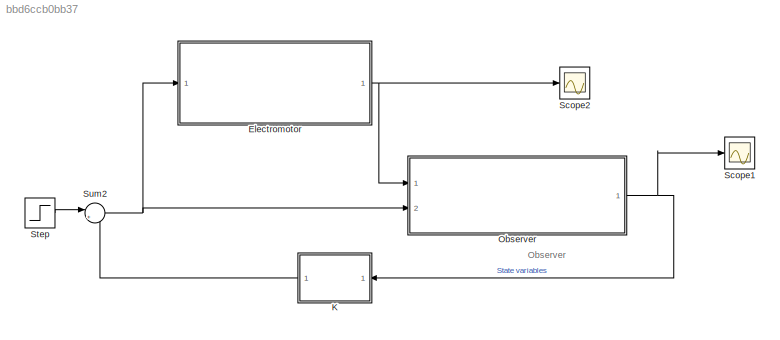
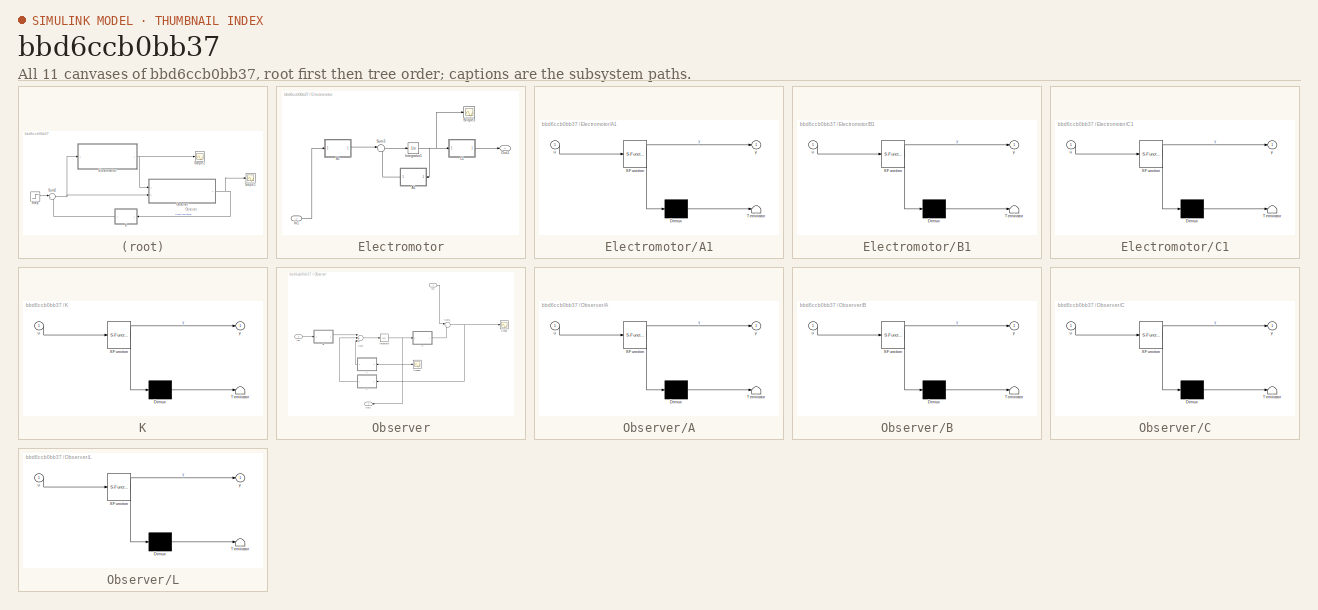
[diagram: thumbnail index - all 11 canvases of the model, root first then tree order]
MODEL slx_bbd6ccb0bb37
KIND model
CONFIG AbsTol = auto
CONFIG EnableMultiTasking = off
CONFIG FixedStep = auto
CONFIG MaxStep = .001
CONFIG MinStep = auto
CONFIG RelTol = 1e-3
CONFIG SampleTimeConstraint = Unconstrained
CONFIG Solver = VariableStepAuto
CONFIG SolverName = VariableStepAuto
CONFIG StartTime = 0.0
CONFIG StopTime = 2
BLOCK [SubSystem] Electromotor
  Ports = [1, 1]
  RequestExecContextInheritance = off
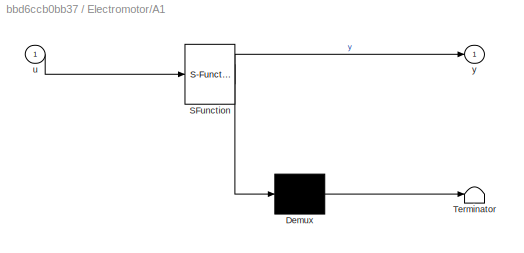
BLOCK [SubSystem] Electromotor/A1
  ErrorFcn = Stateflow.Translate.translate
  PermitHierarchicalResolution = ExplicitOnly
  Ports = [1, 1]
  RequestExecContextInheritance = off
  SFBlockType = MATLAB Function
  TreatAsAtomicUnit = on
BLOCK [Demux] Electromotor/A1/ Demux 
  Outputs = 1
  Ports = [1, 1]
BLOCK [S-Function] Electromotor/A1/ SFunction 
  EnableBusSupport = on
  FunctionName = sf_sfun
  PortCounts = [1 2]
  Ports = [1, 2]
  SFcnIsStateOwnerBlock = off
  SFunctionDeploymentMode = off
  Tag = Stateflow S-Function Observer_Exp1 8
BLOCK [Terminator] Electromotor/A1/ Terminator 
BLOCK [Inport] Electromotor/A1/u
  IconDisplay = Port number
BLOCK [Outport] Electromotor/A1/y
  IconDisplay = Port number
BLOCK [SubSystem] Electromotor/B1
  ErrorFcn = Stateflow.Translate.translate
  PermitHierarchicalResolution = ExplicitOnly
  Ports = [1, 1]
  RequestExecContextInheritance = off
  SFBlockType = MATLAB Function
  TreatAsAtomicUnit = on
BLOCK [Demux] Electromotor/B1/ Demux 
  Outputs = 1
  Ports = [1, 1]
BLOCK [S-Function] Electromotor/B1/ SFunction 
  EnableBusSupport = on
  FunctionName = sf_sfun
  PortCounts = [1 2]
  Ports = [1, 2]
  SFcnIsStateOwnerBlock = off
  SFunctionDeploymentMode = off
  Tag = Stateflow S-Function Observer_Exp1 6
BLOCK [Terminator] Electromotor/B1/ Terminator 
BLOCK [Inport] Electromotor/B1/u
  IconDisplay = Port number
BLOCK [Outport] Electromotor/B1/y
  IconDisplay = Port number
BLOCK [SubSystem] Electromotor/C1
  ErrorFcn = Stateflow.Translate.translate
  PermitHierarchicalResolution = ExplicitOnly
  Ports = [1, 1]
  RequestExecContextInheritance = off
  SFBlockType = MATLAB Function
  TreatAsAtomicUnit = on
BLOCK [Demux] Electromotor/C1/ Demux 
  Outputs = 1
  Ports = [1, 1]
BLOCK [S-Function] Electromotor/C1/ SFunction 
  EnableBusSupport = on
  FunctionName = sf_sfun
  PortCounts = [1 2]
  Ports = [1, 2]
  SFcnIsStateOwnerBlock = off
  SFunctionDeploymentMode = off
  Tag = Stateflow S-Function Observer_Exp1 7
BLOCK [Terminator] Electromotor/C1/ Terminator 
BLOCK [Inport] Electromotor/C1/u
  IconDisplay = Port number
BLOCK [Outport] Electromotor/C1/y
  IconDisplay = Port number
BLOCK [Inport] Electromotor/In1
  IconDisplay = Port number
BLOCK [Integrator] Electromotor/Integrator1
  InitialCondition = [0;0]
  Ports = [1, 1]
BLOCK [Outport] Electromotor/Out1
  IconDisplay = Port number
BLOCK [Scope] Electromotor/Scope3
  Floating = off
  NumInputPorts = 1
  Ports = [1]
  ScopeSpecificationString = Simulink.scopes.TimeScopeBlockCfg('CurrentConfiguration', extmgr.ConfigurationSet(extmgr.Configuration('Core','General UI',true),extmgr.Configuration('Core','Source UI',true),extmgr.Configuration('Sources','WiredSimulink',true,'DataLoggingVariableName','ScopeData3'),extmgr.Configuration('Visuals','Time Domain',true,'SerializedDisplays',{struct('MinYLimReal','-0.31089','MaxYLimReal','0.13105','YLab...<+1432ch>
BLOCK [Sum] Electromotor/Sum3
  IconShape = round
  InputSameDT = off
  Inputs = |++
  OutDataTypeStr = Inherit: Inherit via internal rule
  Ports = [2, 1]
  SaturateOnIntegerOverflow = off
BLOCK [SubSystem] K
  ErrorFcn = Stateflow.Translate.translate
  PermitHierarchicalResolution = ExplicitOnly
  Ports = [1, 1]
  RequestExecContextInheritance = off
  SFBlockType = MATLAB Function
  TreatAsAtomicUnit = on
BLOCK [Demux] K/ Demux 
  Outputs = 1
  Ports = [1, 1]
BLOCK [S-Function] K/ SFunction 
  EnableBusSupport = on
  FunctionName = sf_sfun
  PortCounts = [1 2]
  Ports = [1, 2]
  SFcnIsStateOwnerBlock = off
  SFunctionDeploymentMode = off
  Tag = Stateflow S-Function Observer_Exp1 9
BLOCK [Terminator] K/ Terminator 
BLOCK [Inport] K/u
  IconDisplay = Port number
BLOCK [Outport] K/y
  IconDisplay = Port number
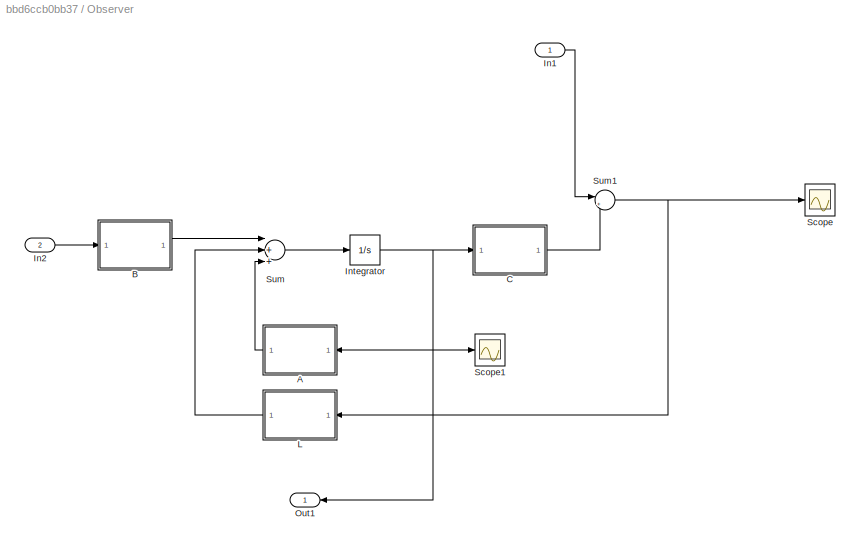
BLOCK [SubSystem] Observer
  Ports = [2, 1]
  RequestExecContextInheritance = off
BLOCK [SubSystem] Observer/A
  ErrorFcn = Stateflow.Translate.translate
  PermitHierarchicalResolution = ExplicitOnly
  Ports = [1, 1]
  RequestExecContextInheritance = off
  SFBlockType = MATLAB Function
  TreatAsAtomicUnit = on
BLOCK [Demux] Observer/A/ Demux 
  Outputs = 1
  Ports = [1, 1]
BLOCK [S-Function] Observer/A/ SFunction 
  EnableBusSupport = on
  FunctionName = sf_sfun
  PortCounts = [1 2]
  Ports = [1, 2]
  SFcnIsStateOwnerBlock = off
  SFunctionDeploymentMode = off
  Tag = Stateflow S-Function Observer_Exp1 1
BLOCK [Terminator] Observer/A/ Terminator 
BLOCK [Inport] Observer/A/u
  IconDisplay = Port number
BLOCK [Outport] Observer/A/y
  IconDisplay = Port number
BLOCK [SubSystem] Observer/B
  ErrorFcn = Stateflow.Translate.translate
  PermitHierarchicalResolution = ExplicitOnly
  Ports = [1, 1]
  RequestExecContextInheritance = off
  SFBlockType = MATLAB Function
  TreatAsAtomicUnit = on
BLOCK [Demux] Observer/B/ Demux 
  Outputs = 1
  Ports = [1, 1]
BLOCK [S-Function] Observer/B/ SFunction 
  EnableBusSupport = on
  FunctionName = sf_sfun
  PortCounts = [1 2]
  Ports = [1, 2]
  SFcnIsStateOwnerBlock = off
  SFunctionDeploymentMode = off
  Tag = Stateflow S-Function Observer_Exp1 4
BLOCK [Terminator] Observer/B/ Terminator 
BLOCK [Inport] Observer/B/u
  IconDisplay = Port number
BLOCK [Outport] Observer/B/y
  IconDisplay = Port number
BLOCK [SubSystem] Observer/C
  ErrorFcn = Stateflow.Translate.translate
  PermitHierarchicalResolution = ExplicitOnly
  Ports = [1, 1]
  RequestExecContextInheritance = off
  SFBlockType = MATLAB Function
  TreatAsAtomicUnit = on
BLOCK [Demux] Observer/C/ Demux 
  Outputs = 1
  Ports = [1, 1]
BLOCK [S-Function] Observer/C/ SFunction 
  EnableBusSupport = on
  FunctionName = sf_sfun
  PortCounts = [1 2]
  Ports = [1, 2]
  SFcnIsStateOwnerBlock = off
  SFunctionDeploymentMode = off
  Tag = Stateflow S-Function Observer_Exp1 2
BLOCK [Terminator] Observer/C/ Terminator 
BLOCK [Inport] Observer/C/u
  IconDisplay = Port number
BLOCK [Outport] Observer/C/y
  IconDisplay = Port number
BLOCK [Inport] Observer/In1
  IconDisplay = Port number
BLOCK [Inport] Observer/In2
  IconDisplay = Port number
  Port = 2
BLOCK [Integrator] Observer/Integrator
  InitialCondition = [0.01;0]
  Ports = [1, 1]
BLOCK [SubSystem] Observer/L
  ErrorFcn = Stateflow.Translate.translate
  PermitHierarchicalResolution = ExplicitOnly
  Ports = [1, 1]
  RequestExecContextInheritance = off
  SFBlockType = MATLAB Function
  TreatAsAtomicUnit = on
BLOCK [Demux] Observer/L/ Demux 
  Outputs = 1
  Ports = [1, 1]
BLOCK [S-Function] Observer/L/ SFunction 
  EnableBusSupport = on
  FunctionName = sf_sfun
  PortCounts = [1 2]
  Ports = [1, 2]
  SFcnIsStateOwnerBlock = off
  SFunctionDeploymentMode = off
  Tag = Stateflow S-Function Observer_Exp1 3
BLOCK [Terminator] Observer/L/ Terminator 
BLOCK [Inport] Observer/L/u
  IconDisplay = Port number
BLOCK [Outport] Observer/L/y
  IconDisplay = Port number
BLOCK [Outport] Observer/Out1
  IconDisplay = Port number
BLOCK [Scope] Observer/Scope
  Floating = off
  NumInputPorts = 1
  Ports = [1]
  ScopeSpecificationString = Simulink.scopes.TimeScopeBlockCfg('CurrentConfiguration', extmgr.ConfigurationSet(extmgr.Configuration('Core','General UI',true),extmgr.Configuration('Core','Source UI',true),extmgr.Configuration('Sources','WiredSimulink',true),extmgr.Configuration('Visuals','Time Domain',true,'SerializedDisplays',{struct('MinYLimReal','-0.01142','MaxYLimReal','0.00279','YLabelReal','','MinYLimMag','0.00000','MaxY...<+1395ch>
BLOCK [Scope] Observer/Scope1
  Floating = off
  NumInputPorts = 1
  Ports = [1]
  ScopeSpecificationString = Simulink.scopes.TimeScopeBlockCfg('CurrentConfiguration', extmgr.ConfigurationSet(extmgr.Configuration('Core','General UI',true),extmgr.Configuration('Core','Source UI',true),extmgr.Configuration('Sources','WiredSimulink',true,'DataLoggingVariableName','ScopeData1'),extmgr.Configuration('Visuals','Time Domain',true,'SerializedDisplays',{struct('MinYLimReal','-0.31089','MaxYLimReal','0.13105','YLab...<+1430ch>
BLOCK [Sum] Observer/Sum
  InputSameDT = off
  Inputs = |+++
  OutDataTypeStr = Inherit: Inherit via internal rule
  Ports = [3, 1]
  SaturateOnIntegerOverflow = off
BLOCK [Sum] Observer/Sum1
  IconShape = round
  InputSameDT = off
  Inputs = |+-
  OutDataTypeStr = Inherit: Inherit via internal rule
  Ports = [2, 1]
  SaturateOnIntegerOverflow = off
BLOCK [Scope] Scope1
  Floating = off
  NumInputPorts = 1
  Ports = [1]
  ScopeSpecificationString = Simulink.scopes.TimeScopeBlockCfg('CurrentConfiguration', extmgr.ConfigurationSet(extmgr.Configuration('Core','General UI',true),extmgr.Configuration('Core','Source UI',true),extmgr.Configuration('Sources','WiredSimulink',true,'DataLoggingVariableName','ScopeData4'),extmgr.Configuration('Visuals','Time Domain',true,'SerializedDisplays',{struct('MinYLimReal','-0.00104','MaxYLimReal','0.00937','YLab...<+1432ch>
BLOCK [Scope] Scope2
  Floating = off
  NumInputPorts = 1
  Ports = [1]
  ScopeSpecificationString = Simulink.scopes.TimeScopeBlockCfg('CurrentConfiguration', extmgr.ConfigurationSet(extmgr.Configuration('Core','General UI',true),extmgr.Configuration('Core','Source UI',true),extmgr.Configuration('Sources','WiredSimulink',true,'DataLoggingVariableName','ScopeData2'),extmgr.Configuration('Visuals','Time Domain',true,'SerializedDisplays',{struct('MinYLimReal','-0.00104','MaxYLimReal','0.00937','YLab...<+1432ch>
BLOCK [Step] Step
  SampleTime = 0
  Time = 0
BLOCK [Sum] Sum2
  IconShape = round
  InputSameDT = off
  Inputs = |+-
  OutDataTypeStr = Inherit: Inherit via internal rule
  Ports = [2, 1]
  SaturateOnIntegerOverflow = off
ANNOTATION (root): Observer
LINE Electromotor/A1:1 -> Electromotor/Sum3:2
LINE Electromotor/B1:1 -> Electromotor/Sum3:1
LINE Electromotor/C1:1 -> Electromotor/Out1:1
LINE Electromotor/In1:1 -> Electromotor/B1:1
NET Electromotor/Integrator1:1 -> Electromotor/A1:1, Electromotor/C1:1, Electromotor/Scope3:1
LINE Electromotor/Sum3:1 -> Electromotor/Integrator1:1
NET Electromotor:1 -> Observer:1, Scope2:1
LINE K:1 -> Sum2:2
LINE Observer/A:1 -> Observer/Sum:3
LINE Observer/B:1 -> Observer/Sum:1
LINE Observer/C:1 -> Observer/Sum1:2
LINE Observer/In1:1 -> Observer/Sum1:1
LINE Observer/In2:1 -> Observer/B:1
NET Observer/Integrator:1 -> Observer/A:1, Observer/C:1, Observer/Out1:1, Observer/Scope1:1
LINE Observer/L:1 -> Observer/Sum:2
NET Observer/Sum1:1 -> Observer/L:1, Observer/Scope:1
LINE Observer/Sum:1 -> Observer/Integrator:1
NET Observer:1 -> K:1, Scope1:1
LINE Step:1 -> Sum2:1
NET Sum2:1 -> Electromotor:1, Observer:2
note: NET lines group one-source signal fan-out (src -> all destinations, sorted); 1:1 wires keep LINE
CHART Observer/A states=1 transitions=1
  STATE_LABEL 'eML_blk_kernel()'
  STATE_LABEL 'SCRIPT:\nfunction y = fcn(u)\nA=[ -4 1\n    0 0];\ny = A*u;\n'
CHART Observer/C states=1 transitions=1
  STATE_LABEL 'eML_blk_kernel()'
  STATE_LABEL 'SCRIPT:\nfunction y = fcn(u)\nC=[1 0 ];\ny = C*u;\n'
CHART Observer/L states=1 transitions=1
  STATE_LABEL 'eML_blk_kernel()'
  STATE_LABEL 'SCRIPT:\nfunction y = fcn(u)\nL=[156;6519];\ny = L*u;\n'
CHART Observer/B states=1 transitions=1
  STATE_LABEL 'eML_blk_kernel()'
  STATE_LABEL 'SCRIPT:\nfunction y = fcn(u)\nB=[0;1];\ny = B*u;\n'
CHART Electromotor/B1 states=1 transitions=1
  STATE_LABEL 'eML_blk_kernel()'
  STATE_LABEL 'SCRIPT:\nfunction y = fcn(u)\nB=[0;1];\ny = B*u;\n'
CHART Electromotor/C1 states=1 transitions=1
  STATE_LABEL 'eML_blk_kernel()'
  STATE_LABEL 'SCRIPT:\nfunction y = fcn(u)\nC=[1 0 ];\ny = C*u;\n'
CHART Electromotor/A1 states=1 transitions=1
  STATE_LABEL 'eML_blk_kernel()'
  STATE_LABEL 'SCRIPT:\nfunction y = fcn(u)\nA=[ -4 1\n    0 0];\ny = A*u;\n'
CHART K states=1 transitions=1
  STATE_LABEL 'eML_blk_kernel()'
  STATE_LABEL 'SCRIPT:\nfunction y = fcn(u)\nK=[135 12];\ny = K*u;\n'
